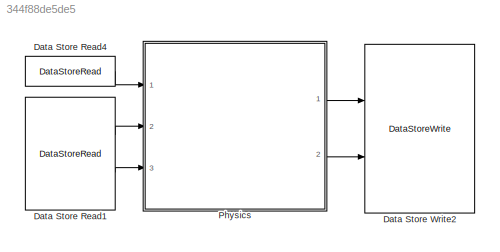
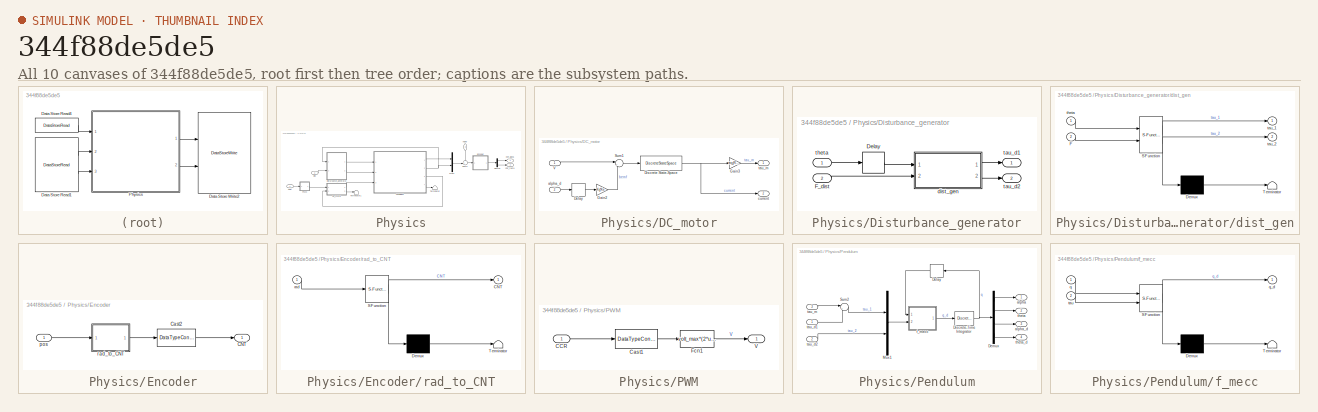
[diagram: thumbnail index - all 10 canvases of the model, root first then tree order]
MODEL slx_344f88de5de5
KIND model
CONFIG AbsTol = auto
CONFIG EnableMultiTasking = off
CONFIG FixedStep = Ts_proc
CONFIG MaxStep = auto
CONFIG MinStep = auto
CONFIG RelTol = 1e-3
CONFIG SampleTimeConstraint = Unconstrained
CONFIG Solver = FixedStepDiscrete
CONFIG SolverName = FixedStepDiscrete
CONFIG StartTime = 0.0
CONFIG StopTime = 25
WORKSPACE source: external: MAT-File  (data not in archive)
BLOCK [DataStoreRead] Data Store Read1
  DataStoreElements = dn.dist#dn.noise
  DataStoreName = dn
  Ports = [0, 2]
BLOCK [DataStoreRead] Data Store Read4
  DataStoreElements = state_board.CCR
  DataStoreName = state_board
  Ports = [0, 1]
BLOCK [DataStoreWrite] Data Store Write2
  DataStoreElements = state_board.CNT_alpha#state_board.CNT_theta
  DataStoreName = state_board
  Ports = [2]
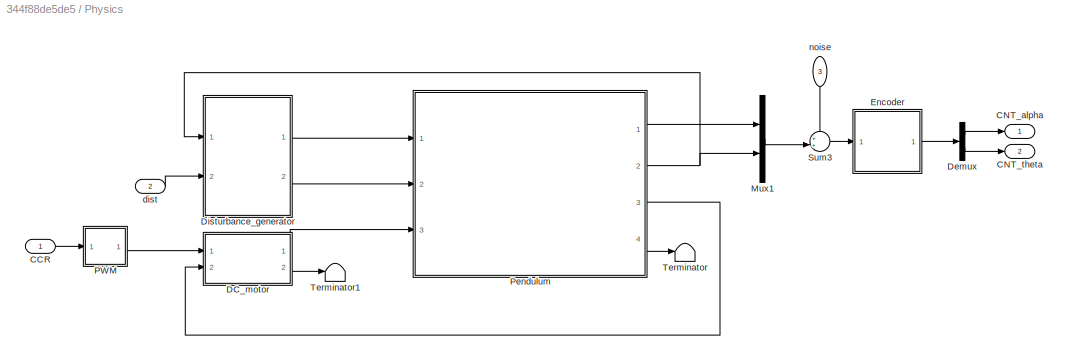
BLOCK [SubSystem] Physics
  FunctionInterfaceSpec = Allow arguments
  Ports = [3, 2]
  RTWFcnName = physics
  RTWFcnNameOpts = User specified
  RTWFileName = physics
  RTWFileNameOpts = User specified
  RTWSystemCode = Nonreusable function
  RequestExecContextInheritance = off
  TreatAsAtomicUnit = on
BLOCK [Inport] Physics/CCR
  IconDisplay = Port number
BLOCK [Outport] Physics/CNT_alpha
  IconDisplay = Port number
BLOCK [Outport] Physics/CNT_theta
  IconDisplay = Port number
  Port = 2
BLOCK [SubSystem] Physics/DC_motor
  Ports = [2, 2]
  RequestExecContextInheritance = off
BLOCK [Delay] Physics/DC_motor/Delay
  DelayLength = 1
  InitialCondition = 0
  InputPortMap = u0
  Ports = [1, 1]
BLOCK [DiscreteStateSpace] Physics/DC_motor/Discrete State-Space
  A = -(Rm*Ts_proc - 2*Lm)/(Rm*Ts_proc + 2*Lm)
  B = Ts_proc/(2*Lm + Rm*Ts_proc)*(1-(Rm*Ts_proc - 2*Lm)/(Rm*Ts_proc + 2*Lm))
  D = Ts_proc/(2*Lm + Rm*Ts_proc)
  InitialCondition = single(0)
  SampleTime = Ts_proc
BLOCK [Gain] Physics/DC_motor/Gain2
  Gain = Kg*Ke
  OutDataTypeStr = Inherit: Inherit via internal rule
  ParamDataTypeStr = Inherit: Inherit via internal rule
  SaturateOnIntegerOverflow = off
BLOCK [Gain] Physics/DC_motor/Gain3
  Gain = eta_g*Kg*Kt
  OutDataTypeStr = Inherit: Inherit via internal rule
  ParamDataTypeStr = Inherit: Inherit via internal rule
  SaturateOnIntegerOverflow = off
BLOCK [Sum] Physics/DC_motor/Sum1
  IconShape = round
  InputSameDT = off
  Inputs = |+-
  OutDataTypeStr = Inherit: Inherit via internal rule
  Ports = [2, 1]
  SaturateOnIntegerOverflow = off
BLOCK [Inport] Physics/DC_motor/V
  IconDisplay = Port number
BLOCK [Inport] Physics/DC_motor/alpha_d
  IconDisplay = Port number
  Port = 2
BLOCK [Outport] Physics/DC_motor/current
  IconDisplay = Port number
  Port = 2
BLOCK [Outport] Physics/DC_motor/tau_m
  IconDisplay = Port number
BLOCK [Demux] Physics/Demux
  DisplayOption = bar
  Outputs = 2
  Ports = [1, 2]
BLOCK [SubSystem] Physics/Disturbance_generator
  Ports = [2, 2]
  RequestExecContextInheritance = off
BLOCK [Delay] Physics/Disturbance_generator/Delay
  DelayLength = 1
  InitialCondition = state_pc_init.theta
  InputPortMap = u0
  Ports = [1, 1]
BLOCK [Inport] Physics/Disturbance_generator/F_dist
  IconDisplay = Port number
  Port = 2
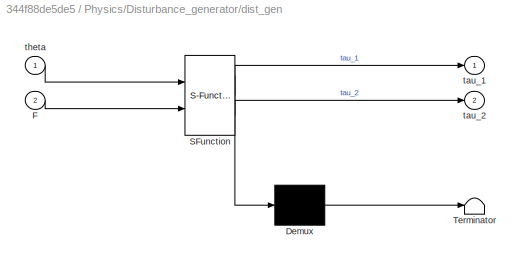
BLOCK [SubSystem] Physics/Disturbance_generator/dist_gen
  ErrorFcn = Stateflow.Translate.translate
  PermitHierarchicalResolution = ExplicitOnly
  Ports = [2, 2]
  RequestExecContextInheritance = off
  SFBlockType = MATLAB Function
BLOCK [Demux] Physics/Disturbance_generator/dist_gen/ Demux 
  Outputs = 1
  Ports = [1, 1]
BLOCK [S-Function] Physics/Disturbance_generator/dist_gen/ SFunction 
  EnableBusSupport = on
  FunctionName = sf_sfun
  Parameters = Larm,Lp
  PortCounts = [2 3]
  Ports = [2, 3]
  SFcnIsStateOwnerBlock = off
  SFunctionDeploymentMode = off
  Tag = Stateflow S-Function 4
BLOCK [Terminator] Physics/Disturbance_generator/dist_gen/ Terminator 
BLOCK [Inport] Physics/Disturbance_generator/dist_gen/F
  IconDisplay = Port number
  Port = 2
BLOCK [Outport] Physics/Disturbance_generator/dist_gen/tau_1
  IconDisplay = Port number
BLOCK [Outport] Physics/Disturbance_generator/dist_gen/tau_2
  IconDisplay = Port number
  Port = 2
BLOCK [Inport] Physics/Disturbance_generator/dist_gen/theta
  IconDisplay = Port number
BLOCK [Outport] Physics/Disturbance_generator/tau_d1
  IconDisplay = Port number
BLOCK [Outport] Physics/Disturbance_generator/tau_d2
  IconDisplay = Port number
  Port = 2
BLOCK [Inport] Physics/Disturbance_generator/theta
  IconDisplay = Port number
BLOCK [SubSystem] Physics/Encoder
  Ports = [1, 1]
  RequestExecContextInheritance = off
BLOCK [Outport] Physics/Encoder/CNT
  IconDisplay = Port number
BLOCK [DataTypeConversion] Physics/Encoder/Cast2
  OutDataTypeStr = uint16
  RndMeth = Floor
  SaturateOnIntegerOverflow = off
BLOCK [Inport] Physics/Encoder/pos
  IconDisplay = Port number
BLOCK [SubSystem] Physics/Encoder/rad_to_CNT
  ErrorFcn = Stateflow.Translate.translate
  PermitHierarchicalResolution = ExplicitOnly
  Ports = [1, 1]
  RequestExecContextInheritance = off
  SFBlockType = MATLAB Function
BLOCK [Demux] Physics/Encoder/rad_to_CNT/ Demux 
  Outputs = 1
  Ports = [1, 1]
BLOCK [S-Function] Physics/Encoder/rad_to_CNT/ SFunction 
  EnableBusSupport = on
  FunctionName = sf_sfun
  Parameters = encoder_res
  PortCounts = [1 2]
  Ports = [1, 2]
  SFcnIsStateOwnerBlock = off
  SFunctionDeploymentMode = off
  Tag = Stateflow S-Function 1
BLOCK [Terminator] Physics/Encoder/rad_to_CNT/ Terminator 
BLOCK [Outport] Physics/Encoder/rad_to_CNT/CNT
  IconDisplay = Port number
BLOCK [Inport] Physics/Encoder/rad_to_CNT/rad
  IconDisplay = Port number
BLOCK [Mux] Physics/Mux1
  DisplayOption = bar
  Inputs = 2
  Ports = [2, 1]
BLOCK [SubSystem] Physics/PWM
  Ports = [1, 1]
  RequestExecContextInheritance = off
BLOCK [Inport] Physics/PWM/CCR
  IconDisplay = Port number
BLOCK [DataTypeConversion] Physics/PWM/Cast1
  OutDataTypeStr = single
  RndMeth = Floor
  SaturateOnIntegerOverflow = off
BLOCK [Fcn] Physics/PWM/Fcn1
  Expr = volt_max*(2*u/CCR_max-1)
BLOCK [Outport] Physics/PWM/V
  IconDisplay = Port number
BLOCK [SubSystem] Physics/Pendulum
  Ports = [3, 4]
  RequestExecContextInheritance = off
BLOCK [Delay] Physics/Pendulum/Delay
  DelayLength = 1
  InitialCondition = [state_pc_init.alpha;state_pc_init.theta;0;0]
  InputPortMap = u0
  Ports = [1, 1]
BLOCK [Demux] Physics/Pendulum/Demux
  DisplayOption = bar
  Ports = [1, 4]
BLOCK [DiscreteIntegrator] Physics/Pendulum/Discrete-Time Integrator
  ICPrevOutput = DiscIntNeverNeededParam
  ICPrevScaledInput = DiscIntNeverNeededParam
  InitialCondition = [state_pc_init.alpha;state_pc_init.theta;0;0]
  InitialConditionSetting = Auto
  IntegratorMethod = Integration: Trapezoidal
  Ports = [1, 1]
  SampleTime = Ts_proc
  gainval = single(1.0)
BLOCK [Mux] Physics/Pendulum/Mux1
  DisplayOption = bar
  Inputs = 2
  Ports = [2, 1]
BLOCK [Sum] Physics/Pendulum/Sum2
  IconShape = round
  InputSameDT = off
  Inputs = |++
  OutDataTypeStr = Inherit: Inherit via internal rule
  Ports = [2, 1]
  SaturateOnIntegerOverflow = off
BLOCK [Outport] Physics/Pendulum/alpha
  IconDisplay = Port number
BLOCK [Outport] Physics/Pendulum/alpha_d
  IconDisplay = Port number
  Port = 3
BLOCK [SubSystem] Physics/Pendulum/f_mecc
  ErrorFcn = Stateflow.Translate.translate
  PermitHierarchicalResolution = ExplicitOnly
  Ports = [2, 1]
  RequestExecContextInheritance = off
  SFBlockType = MATLAB Function
  TreatAsAtomicUnit = on
BLOCK [Demux] Physics/Pendulum/f_mecc/ Demux 
  Outputs = 1
  Ports = [1, 1]
BLOCK [S-Function] Physics/Pendulum/f_mecc/ SFunction 
  EnableBusSupport = on
  FunctionName = sf_sfun
  Parameters = J0,Jp,Larm,bma,bp,g,lp,mp
  PortCounts = [2 2]
  Ports = [2, 2]
  SFcnIsStateOwnerBlock = off
  SFunctionDeploymentMode = off
  Tag = Stateflow S-Function 2
BLOCK [Terminator] Physics/Pendulum/f_mecc/ Terminator 
BLOCK [Inport] Physics/Pendulum/f_mecc/q
  IconDisplay = Port number
BLOCK [Outport] Physics/Pendulum/f_mecc/q_d
  IconDisplay = Port number
BLOCK [Inport] Physics/Pendulum/f_mecc/tau
  IconDisplay = Port number
  Port = 2
BLOCK [Inport] Physics/Pendulum/tau_d1
  IconDisplay = Port number
BLOCK [Inport] Physics/Pendulum/tau_d2
  IconDisplay = Port number
  Port = 2
BLOCK [Inport] Physics/Pendulum/tau_m
  IconDisplay = Port number
  Port = 3
BLOCK [Outport] Physics/Pendulum/theta
  IconDisplay = Port number
  Port = 2
BLOCK [Outport] Physics/Pendulum/theta_d
  IconDisplay = Port number
  Port = 4
BLOCK [Sum] Physics/Sum3
  IconShape = round
  InputSameDT = off
  Inputs = ++|
  OutDataTypeStr = Inherit: Inherit via internal rule
  Ports = [2, 1]
  SaturateOnIntegerOverflow = off
BLOCK [Terminator] Physics/Terminator
BLOCK [Terminator] Physics/Terminator1
BLOCK [Inport] Physics/dist
  IconDisplay = Port number
  Port = 2
BLOCK [Inport] Physics/noise
  IconDisplay = Port number
  Port = 3
LINE Data Store Read1:1 -> Physics:2
LINE Data Store Read1:2 -> Physics:3
LINE Data Store Read4:1 -> Physics:1
LINE Physics/CCR:1 -> Physics/PWM:1
LINE Physics/DC_motor/Delay:1 -> Physics/DC_motor/Gain2:1
NET Physics/DC_motor/Discrete State-Space:1 -> Physics/DC_motor/Gain3:1, Physics/DC_motor/current:1
LINE Physics/DC_motor/Gain2:1 -> Physics/DC_motor/Sum1:2
LINE Physics/DC_motor/Gain3:1 -> Physics/DC_motor/tau_m:1
LINE Physics/DC_motor/Sum1:1 -> Physics/DC_motor/Discrete State-Space:1
LINE Physics/DC_motor/V:1 -> Physics/DC_motor/Sum1:1
LINE Physics/DC_motor/alpha_d:1 -> Physics/DC_motor/Delay:1
LINE Physics/DC_motor:1 -> Physics/Pendulum:3
LINE Physics/DC_motor:2 -> Physics/Terminator1:1
LINE Physics/Demux:1 -> Physics/CNT_alpha:1
LINE Physics/Demux:2 -> Physics/CNT_theta:1
LINE Physics/Disturbance_generator/Delay:1 -> Physics/Disturbance_generator/dist_gen:1
LINE Physics/Disturbance_generator/F_dist:1 -> Physics/Disturbance_generator/dist_gen:2
LINE Physics/Disturbance_generator/dist_gen:1 -> Physics/Disturbance_generator/tau_d1:1
LINE Physics/Disturbance_generator/dist_gen:2 -> Physics/Disturbance_generator/tau_d2:1
LINE Physics/Disturbance_generator/theta:1 -> Physics/Disturbance_generator/Delay:1
LINE Physics/Disturbance_generator:1 -> Physics/Pendulum:1
LINE Physics/Disturbance_generator:2 -> Physics/Pendulum:2
LINE Physics/Encoder/Cast2:1 -> Physics/Encoder/CNT:1
LINE Physics/Encoder/pos:1 -> Physics/Encoder/rad_to_CNT:1
LINE Physics/Encoder/rad_to_CNT:1 -> Physics/Encoder/Cast2:1
LINE Physics/Encoder:1 -> Physics/Demux:1
LINE Physics/Mux1:1 -> Physics/Sum3:2
LINE Physics/PWM/CCR:1 -> Physics/PWM/Cast1:1
LINE Physics/PWM/Cast1:1 -> Physics/PWM/Fcn1:1
LINE Physics/PWM/Fcn1:1 -> Physics/PWM/V:1
LINE Physics/PWM:1 -> Physics/DC_motor:1
LINE Physics/Pendulum/Delay:1 -> Physics/Pendulum/f_mecc:1
LINE Physics/Pendulum/Demux:1 -> Physics/Pendulum/alpha:1
LINE Physics/Pendulum/Demux:2 -> Physics/Pendulum/theta:1
LINE Physics/Pendulum/Demux:3 -> Physics/Pendulum/alpha_d:1
LINE Physics/Pendulum/Demux:4 -> Physics/Pendulum/theta_d:1
NET Physics/Pendulum/Discrete-Time Integrator:1 -> Physics/Pendulum/Delay:1, Physics/Pendulum/Demux:1
LINE Physics/Pendulum/Mux1:1 -> Physics/Pendulum/f_mecc:2
LINE Physics/Pendulum/Sum2:1 -> Physics/Pendulum/Mux1:1
LINE Physics/Pendulum/f_mecc:1 -> Physics/Pendulum/Discrete-Time Integrator:1
LINE Physics/Pendulum/tau_d1:1 -> Physics/Pendulum/Sum2:2
LINE Physics/Pendulum/tau_d2:1 -> Physics/Pendulum/Mux1:2
LINE Physics/Pendulum/tau_m:1 -> Physics/Pendulum/Sum2:1
LINE Physics/Pendulum:1 -> Physics/Mux1:1
NET Physics/Pendulum:2 -> Physics/Disturbance_generator:1, Physics/Mux1:2
LINE Physics/Pendulum:3 -> Physics/DC_motor:2
LINE Physics/Pendulum:4 -> Physics/Terminator:1
LINE Physics/Sum3:1 -> Physics/Encoder:1
LINE Physics/dist:1 -> Physics/Disturbance_generator:2
LINE Physics/noise:1 -> Physics/Sum3:1
LINE Physics:1 -> Data Store Write2:1
LINE Physics:2 -> Data Store Write2:2
note: NET lines group one-source signal fan-out (src -> all destinations, sorted); 1:1 wires keep LINE
CHART Physics/Encoder/rad_to_CNT states=1 transitions=1
  STATE_LABEL 'eML_blk_kernel()'
  STATE_LABEL 'SCRIPT:\nfunction CNT = rad_to_CNT(rad,encoder_res)\n\nCNT = floor(mod(rad,single(2*pi))/single(2*pi)*encoder_res);\n'
CHART Physics/Pendulum/f_mecc states=1 transitions=1
  STATE_LABEL 'eML_blk_kernel()'
  STATE_LABEL 'SCRIPT:\nfunction q_d = f_mecc(q,tau,mp,J0,Jp,Larm,lp,g,bma,bp)\n%#codegen\n\n%    This function was generated by the Symbolic Math Toolbox version 8.4.\n%    09-Dec-2019 19:45:31\n\nal_d = q(3);\ntau1 = tau(1);\ntau2 = tau(2);\nth = q(2);\nth_d = q(4);\nq_d = [al_d;th_d;((Jp.*tau1.*-2.0+Jp.*al_d.*bma.*2.0+Jp.^2.*al_d.*th_d.*sin(th.*2.0).*2.0+Larm.*lp.*mp.*tau2.*cos(th).*2.0-Larm.*bp.*lp.*mp.*th_d.*cos(th).*2...<+695ch>'
CHART Physics/Disturbance_generator/dist_gen states=1 transitions=1
  STATE_LABEL 'eML_blk_kernel()'
  STATE_LABEL 'SCRIPT:\nfunction [tau_1,tau_2] = dist_gen(theta,F,Larm,Lp)\n\ntau_1 = F*Larm;\ntau_2 = F*cos(theta)*Lp;'
